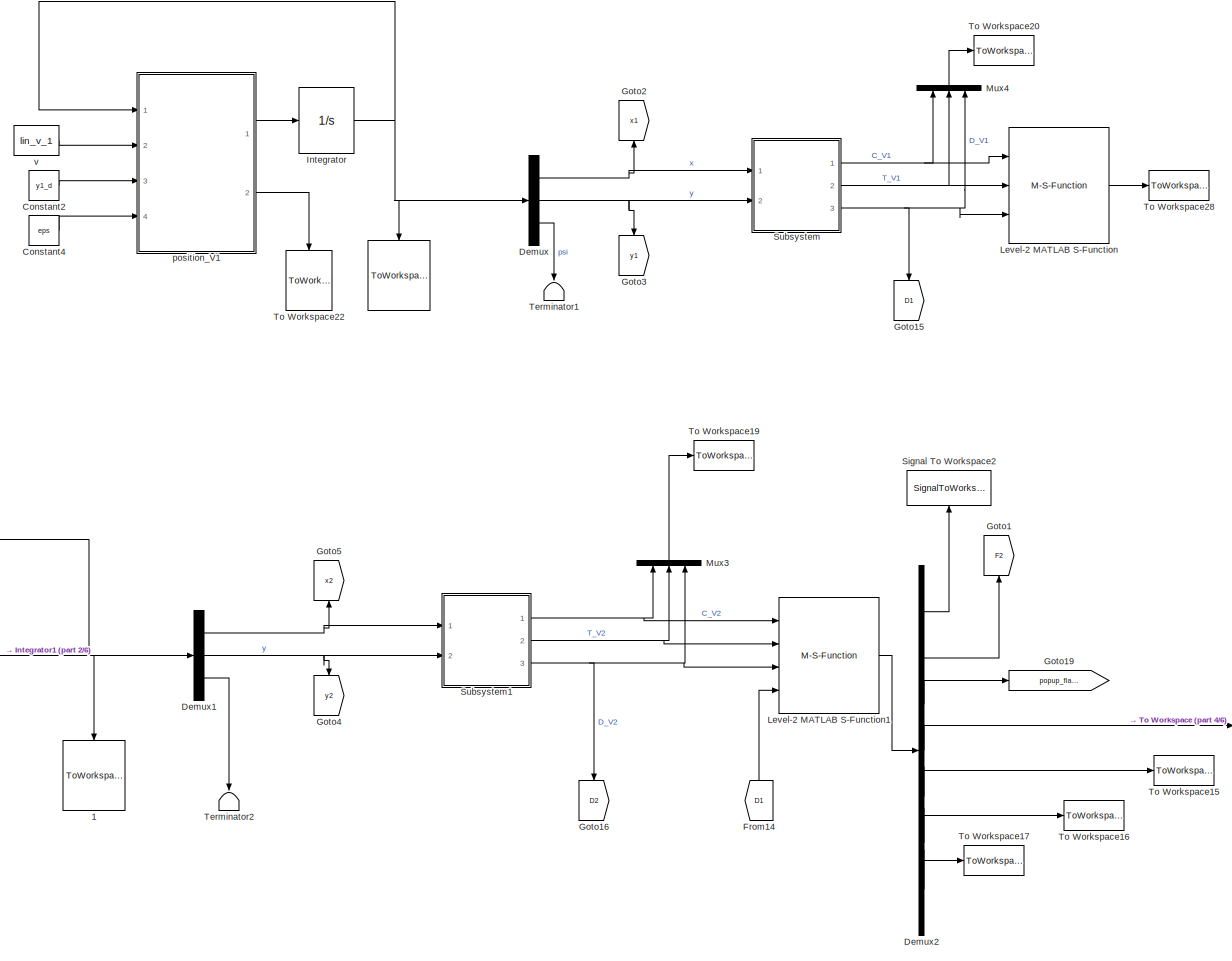
[diagram: root canvas - part 1/6, top right region]
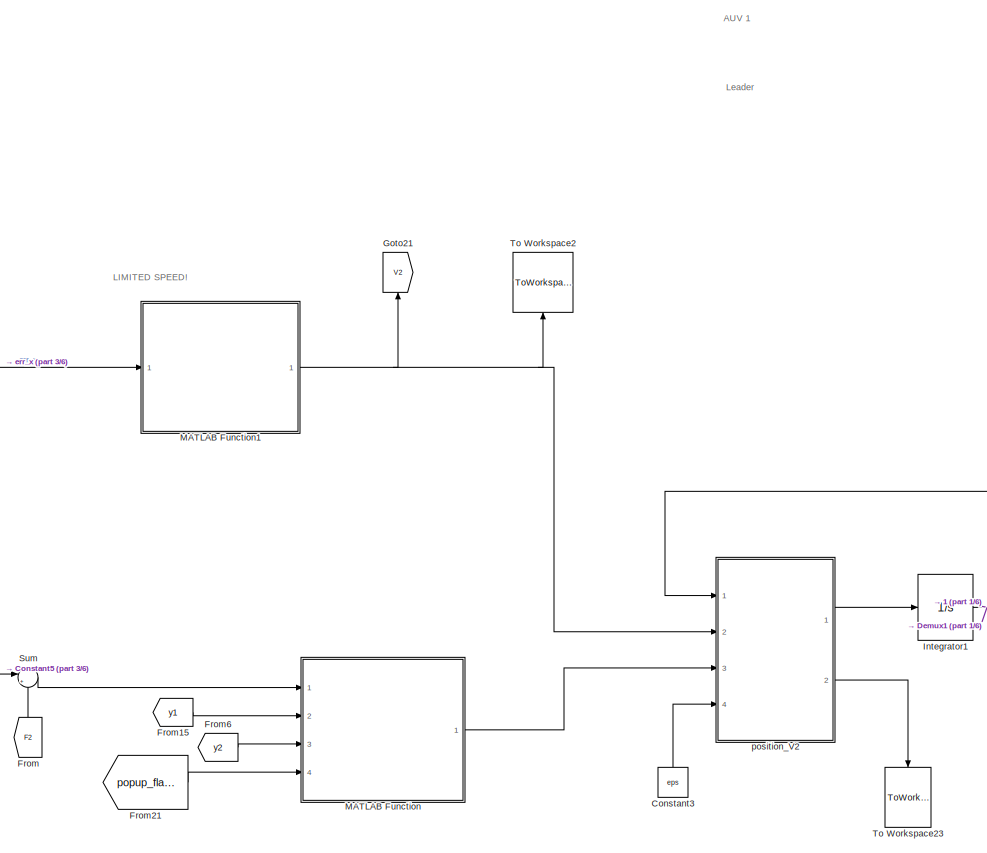
[diagram: root canvas - part 2/6, top center region]
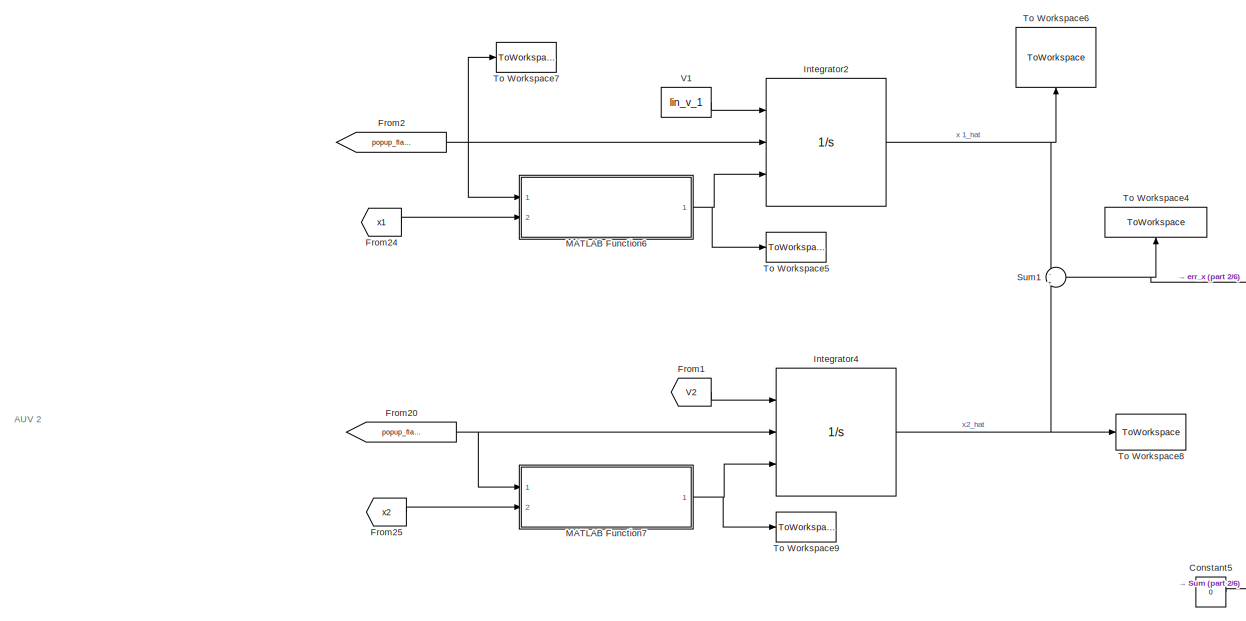
[diagram: root canvas - part 3/6, top left region]
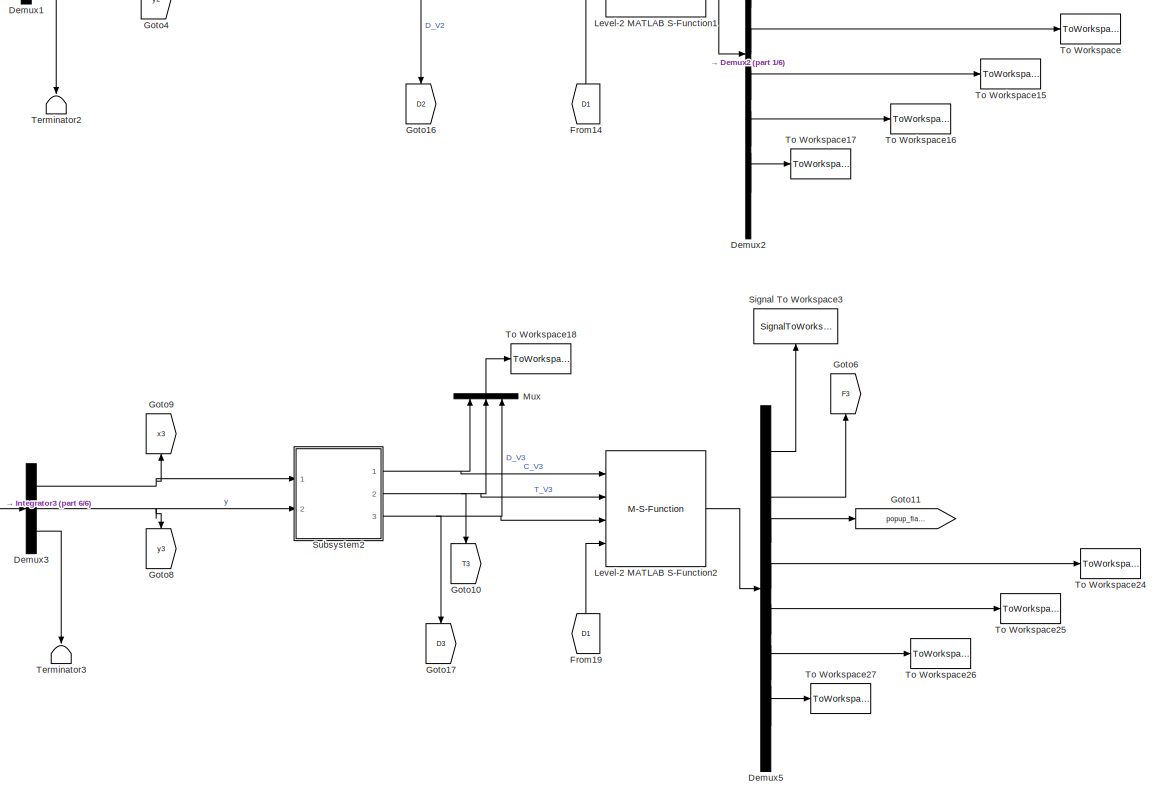
[diagram: root canvas - part 4/6, bottom right region]
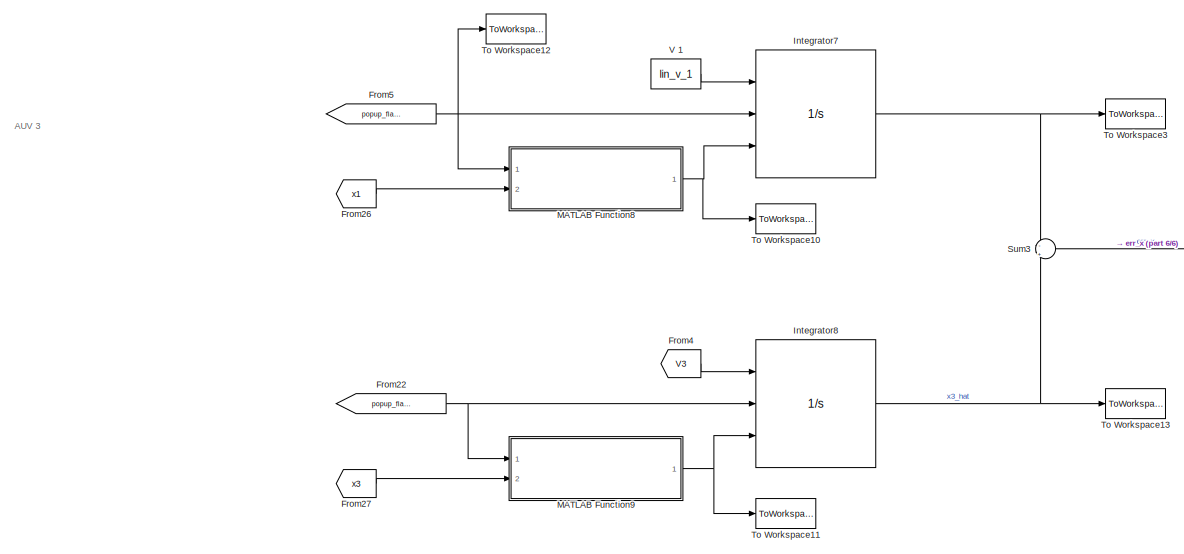
[diagram: root canvas - part 5/6, bottom left region]
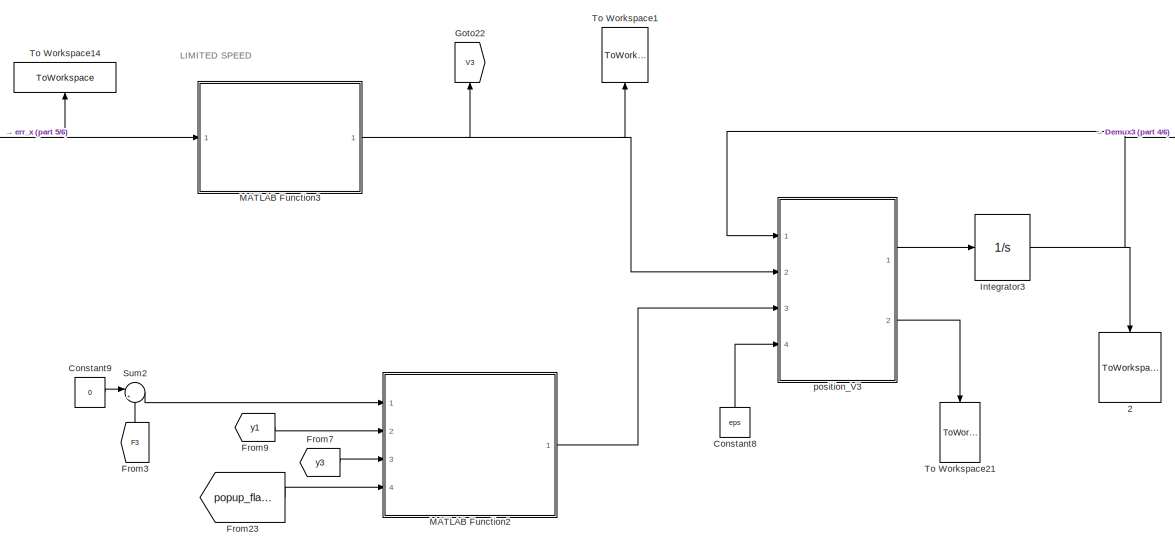
[diagram: root canvas - part 6/6, bottom center region]
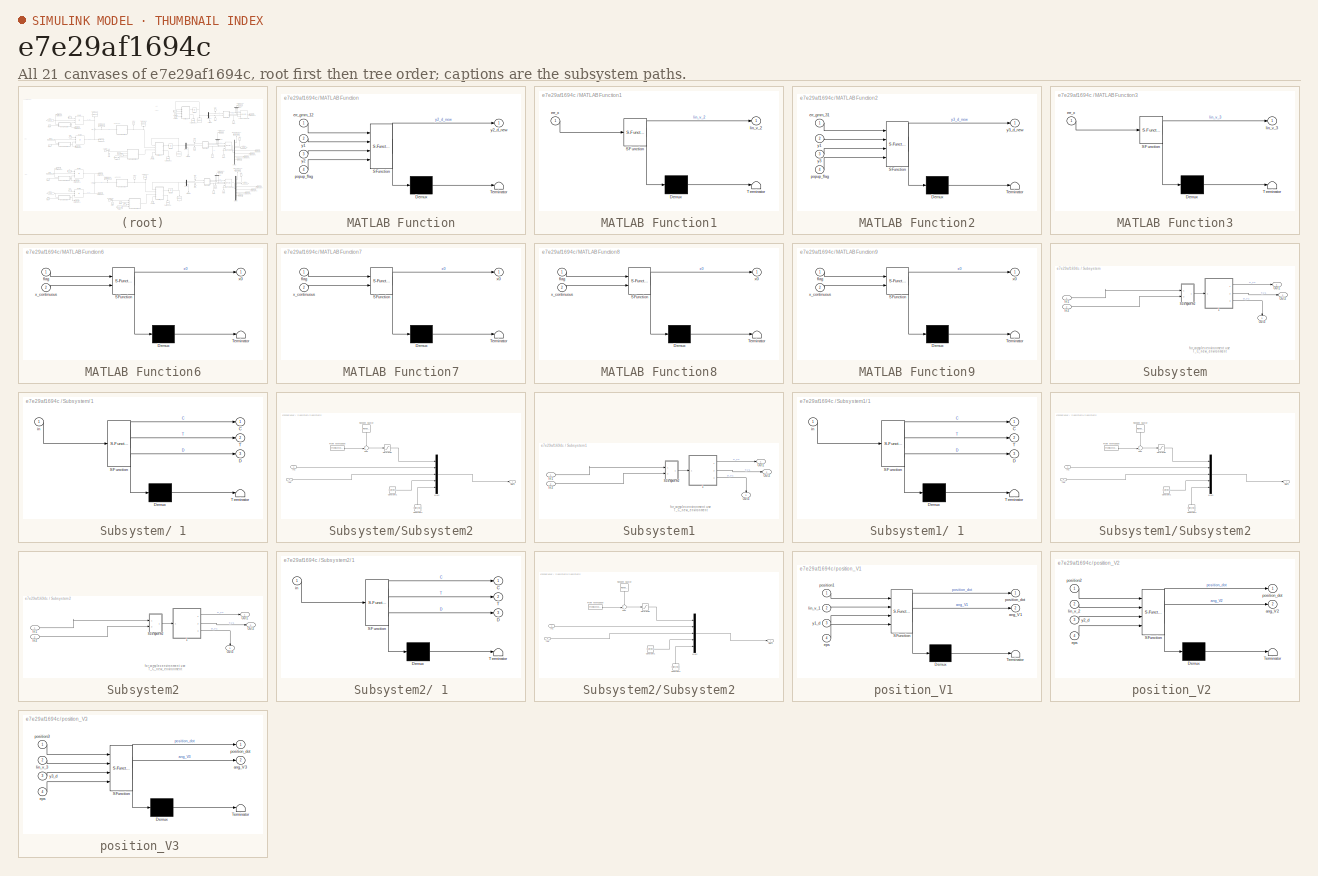
[diagram: thumbnail index - all 21 canvases of the model, root first then tree order]
MODEL slx_e7e29af1694c
KIND model
BLOCK [ToWorkspace]  
  FixptAsFi = on
  MaxDataPoints = inf
  Ports = [1]
  SampleTime = Sample_Time
  Save2DSignal = 3-D array (concatenate along third dimension)
  VariableName = position_V1
BLOCK [ToWorkspace]  1
  FixptAsFi = on
  MaxDataPoints = inf
  Ports = [1]
  SampleTime = Sample_Time
  Save2DSignal = 3-D array (concatenate along third dimension)
  VariableName = position_V2
BLOCK [ToWorkspace]  2
  FixptAsFi = on
  MaxDataPoints = inf
  Ports = [1]
  SampleTime = Sample_Time
  Save2DSignal = 3-D array (concatenate along third dimension)
  VariableName = position_V3
BLOCK [Constant] Constant2
  SampleTime = Sample_Time
  Value = y1_d
BLOCK [Constant] Constant3
  SampleTime = Sample_Time
  Value = eps
BLOCK [Constant] Constant4
  SampleTime = Sample_Time
  Value = eps
BLOCK [Constant] Constant5
  SampleTime = Sample_Time
  Value = 0
BLOCK [Constant] Constant8
  SampleTime = Sample_Time
  Value = eps
BLOCK [Constant] Constant9
  SampleTime = Sample_Time
  Value = 0
BLOCK [Demux] Demux
  DisplayOption = bar
  Outputs = 3
  Ports = [1, 3]
BLOCK [Demux] Demux1
  DisplayOption = bar
  Outputs = 3
  Ports = [1, 3]
BLOCK [Demux] Demux2
  DisplayOption = bar
  Outputs = 7
  Ports = [1, 7]
BLOCK [Demux] Demux3
  DisplayOption = bar
  Outputs = 3
  Ports = [1, 3]
BLOCK [Demux] Demux5
  DisplayOption = bar
  Outputs = 7
  Ports = [1, 7]
BLOCK [From] From
  GotoTag = F2
BLOCK [From] From1
  GotoTag = V2
BLOCK [From] From14
  GotoTag = D1
BLOCK [From] From15
  GotoTag = y1
  TagVisibility = global
BLOCK [From] From19
  GotoTag = D1
BLOCK [From] From2
  GotoTag = popup_flag2
BLOCK [From] From20
  GotoTag = popup_flag2
BLOCK [From] From21
  GotoTag = popup_flag2
BLOCK [From] From22
  GotoTag = popup_flag3
BLOCK [From] From23
  GotoTag = popup_flag3
BLOCK [From] From24
  GotoTag = x1
BLOCK [From] From25
  GotoTag = x2
BLOCK [From] From26
  GotoTag = x1
BLOCK [From] From27
  GotoTag = x3
BLOCK [From] From3
  GotoTag = F3
BLOCK [From] From4
  GotoTag = V3
BLOCK [From] From5
  GotoTag = popup_flag3
BLOCK [From] From6
  GotoTag = y2
BLOCK [From] From7
  GotoTag = y3
BLOCK [From] From9
  GotoTag = y1
  TagVisibility = global
BLOCK [Goto] Goto1
  GotoTag = F2
BLOCK [Goto] Goto10
  Commented = on
  GotoTag = T3
BLOCK [Goto] Goto11
  GotoTag = popup_flag3
BLOCK [Goto] Goto15
  GotoTag = D1
BLOCK [Goto] Goto16
  Commented = on
  GotoTag = D2
BLOCK [Goto] Goto17
  Commented = on
  GotoTag = D3
BLOCK [Goto] Goto19
  GotoTag = popup_flag2
BLOCK [Goto] Goto2
  GotoTag = x1
BLOCK [Goto] Goto21
  GotoTag = V2
BLOCK [Goto] Goto22
  GotoTag = V3
BLOCK [Goto] Goto3
  GotoTag = y1
  TagVisibility = global
BLOCK [Goto] Goto4
  GotoTag = y2
BLOCK [Goto] Goto5
  GotoTag = x2
BLOCK [Goto] Goto6
  GotoTag = F3
BLOCK [Goto] Goto8
  GotoTag = y3
BLOCK [Goto] Goto9
  GotoTag = x3
BLOCK [Integrator] Integrator
  InitialCondition = [0;y1_0;theta0]
  Ports = [1, 1]
BLOCK [Integrator] Integrator1
  InitialCondition = [0;y2_0;theta0]
  Ports = [1, 1]
BLOCK [Integrator] Integrator2
  ExternalReset = level hold
  InitialConditionSource = external
  Ports = [3, 1]
BLOCK [Integrator] Integrator3
  InitialCondition = [0;y3_0;theta0]
  Ports = [1, 1]
BLOCK [Integrator] Integrator4
  ExternalReset = level hold
  InitialConditionSource = external
  Ports = [3, 1]
BLOCK [Integrator] Integrator7
  ExternalReset = level hold
  InitialConditionSource = external
  Ports = [3, 1]
BLOCK [Integrator] Integrator8
  ExternalReset = level hold
  InitialConditionSource = external
  Ports = [3, 1]
BLOCK [M-S-Function] Level-2 MATLAB S-Function
  FunctionName = gmm_estimate_V1
  Ports = [3, 1]
BLOCK [M-S-Function] Level-2 MATLAB S-Function1
  FunctionName = gmm_estimate_V2
  Ports = [4, 1]
BLOCK [M-S-Function] Level-2 MATLAB S-Function2
  FunctionName = gmm_estimate_V3
  Ports = [4, 1]
BLOCK [SubSystem] MATLAB Function
  ErrorFcn = Stateflow.Translate.translate
  PermitHierarchicalResolution = ExplicitOnly
  Ports = [4, 1]
  RequestExecContextInheritance = off
  SFBlockType = MATLAB Function
  TreatAsAtomicUnit = on
BLOCK [Demux] MATLAB Function/ Demux 
  Outputs = 1
  Ports = [1, 1]
BLOCK [S-Function] MATLAB Function/ SFunction 
  EnableBusSupport = on
  FunctionName = sf_sfun
  PortCounts = [4 2]
  Ports = [4, 2]
  Tag = Stateflow S-Function fleet_model 6
BLOCK [Terminator] MATLAB Function/ Terminator 
BLOCK [Inport] MATLAB Function/err_gmm_12
  IconDisplay = Port number
BLOCK [Inport] MATLAB Function/popup_flag
  IconDisplay = Port number
  Port = 4
BLOCK [Inport] MATLAB Function/y1
  IconDisplay = Port number
  Port = 2
BLOCK [Inport] MATLAB Function/y2
  IconDisplay = Port number
  Port = 3
BLOCK [Outport] MATLAB Function/y2_d_new
  IconDisplay = Port number
BLOCK [SubSystem] MATLAB Function1
  ErrorFcn = Stateflow.Translate.translate
  PermitHierarchicalResolution = ExplicitOnly
  Ports = [1, 1]
  RequestExecContextInheritance = off
  SFBlockType = MATLAB Function
  TreatAsAtomicUnit = on
BLOCK [Demux] MATLAB Function1/ Demux 
  Outputs = 1
  Ports = [1, 1]
BLOCK [S-Function] MATLAB Function1/ SFunction 
  EnableBusSupport = on
  FunctionName = sf_sfun
  PortCounts = [1 2]
  Ports = [1, 2]
  Tag = Stateflow S-Function fleet_model 7
BLOCK [Terminator] MATLAB Function1/ Terminator 
BLOCK [Inport] MATLAB Function1/err_x
  IconDisplay = Port number
BLOCK [Outport] MATLAB Function1/lin_v_2
  IconDisplay = Port number
BLOCK [SubSystem] MATLAB Function2
  ErrorFcn = Stateflow.Translate.translate
  PermitHierarchicalResolution = ExplicitOnly
  Ports = [4, 1]
  RequestExecContextInheritance = off
  SFBlockType = MATLAB Function
  TreatAsAtomicUnit = on
BLOCK [Demux] MATLAB Function2/ Demux 
  Outputs = 1
  Ports = [1, 1]
BLOCK [S-Function] MATLAB Function2/ SFunction 
  EnableBusSupport = on
  FunctionName = sf_sfun
  PortCounts = [4 2]
  Ports = [4, 2]
  Tag = Stateflow S-Function fleet_model 8
BLOCK [Terminator] MATLAB Function2/ Terminator 
BLOCK [Inport] MATLAB Function2/err_gmm_31
  IconDisplay = Port number
BLOCK [Inport] MATLAB Function2/popup_flag
  IconDisplay = Port number
  Port = 4
BLOCK [Inport] MATLAB Function2/y1
  IconDisplay = Port number
  Port = 2
BLOCK [Inport] MATLAB Function2/y3
  IconDisplay = Port number
  Port = 3
BLOCK [Outport] MATLAB Function2/y3_d_new
  IconDisplay = Port number
BLOCK [SubSystem] MATLAB Function3
  ErrorFcn = Stateflow.Translate.translate
  PermitHierarchicalResolution = ExplicitOnly
  Ports = [1, 1]
  RequestExecContextInheritance = off
  SFBlockType = MATLAB Function
  TreatAsAtomicUnit = on
BLOCK [Demux] MATLAB Function3/ Demux 
  Outputs = 1
  Ports = [1, 1]
BLOCK [S-Function] MATLAB Function3/ SFunction 
  EnableBusSupport = on
  FunctionName = sf_sfun
  PortCounts = [1 2]
  Ports = [1, 2]
  Tag = Stateflow S-Function fleet_model 9
BLOCK [Terminator] MATLAB Function3/ Terminator 
BLOCK [Inport] MATLAB Function3/err_x
  IconDisplay = Port number
BLOCK [Outport] MATLAB Function3/lin_v_3
  IconDisplay = Port number
BLOCK [SubSystem] MATLAB Function6
  ErrorFcn = Stateflow.Translate.translate
  PermitHierarchicalResolution = ExplicitOnly
  Ports = [2, 1]
  RequestExecContextInheritance = off
  SFBlockType = MATLAB Function
  TreatAsAtomicUnit = on
BLOCK [Demux] MATLAB Function6/ Demux 
  Outputs = 1
  Ports = [1, 1]
BLOCK [S-Function] MATLAB Function6/ SFunction 
  EnableBusSupport = on
  FunctionName = sf_sfun
  PortCounts = [2 2]
  Ports = [2, 2]
  Tag = Stateflow S-Function fleet_model 15
BLOCK [Terminator] MATLAB Function6/ Terminator 
BLOCK [Inport] MATLAB Function6/flag
  IconDisplay = Port number
BLOCK [Outport] MATLAB Function6/x0
  IconDisplay = Port number
BLOCK [Inport] MATLAB Function6/x_continuous
  IconDisplay = Port number
  Port = 2
BLOCK [SubSystem] MATLAB Function7
  ErrorFcn = Stateflow.Translate.translate
  PermitHierarchicalResolution = ExplicitOnly
  Ports = [2, 1]
  RequestExecContextInheritance = off
  SFBlockType = MATLAB Function
  TreatAsAtomicUnit = on
BLOCK [Demux] MATLAB Function7/ Demux 
  Outputs = 1
  Ports = [1, 1]
BLOCK [S-Function] MATLAB Function7/ SFunction 
  EnableBusSupport = on
  FunctionName = sf_sfun
  PortCounts = [2 2]
  Ports = [2, 2]
  Tag = Stateflow S-Function fleet_model 16
BLOCK [Terminator] MATLAB Function7/ Terminator 
BLOCK [Inport] MATLAB Function7/flag
  IconDisplay = Port number
BLOCK [Outport] MATLAB Function7/x0
  IconDisplay = Port number
BLOCK [Inport] MATLAB Function7/x_continuous
  IconDisplay = Port number
  Port = 2
BLOCK [SubSystem] MATLAB Function8
  ErrorFcn = Stateflow.Translate.translate
  PermitHierarchicalResolution = ExplicitOnly
  Ports = [2, 1]
  RequestExecContextInheritance = off
  SFBlockType = MATLAB Function
  TreatAsAtomicUnit = on
BLOCK [Demux] MATLAB Function8/ Demux 
  Outputs = 1
  Ports = [1, 1]
BLOCK [S-Function] MATLAB Function8/ SFunction 
  EnableBusSupport = on
  FunctionName = sf_sfun
  PortCounts = [2 2]
  Ports = [2, 2]
  Tag = Stateflow S-Function fleet_model 17
BLOCK [Terminator] MATLAB Function8/ Terminator 
BLOCK [Inport] MATLAB Function8/flag
  IconDisplay = Port number
BLOCK [Outport] MATLAB Function8/x0
  IconDisplay = Port number
BLOCK [Inport] MATLAB Function8/x_continuous
  IconDisplay = Port number
  Port = 2
BLOCK [SubSystem] MATLAB Function9
  ErrorFcn = Stateflow.Translate.translate
  PermitHierarchicalResolution = ExplicitOnly
  Ports = [2, 1]
  RequestExecContextInheritance = off
  SFBlockType = MATLAB Function
  TreatAsAtomicUnit = on
BLOCK [Demux] MATLAB Function9/ Demux 
  Outputs = 1
  Ports = [1, 1]
BLOCK [S-Function] MATLAB Function9/ SFunction 
  EnableBusSupport = on
  FunctionName = sf_sfun
  PortCounts = [2 2]
  Ports = [2, 2]
  Tag = Stateflow S-Function fleet_model 18
BLOCK [Terminator] MATLAB Function9/ Terminator 
BLOCK [Inport] MATLAB Function9/flag
  IconDisplay = Port number
BLOCK [Outport] MATLAB Function9/x0
  IconDisplay = Port number
BLOCK [Inport] MATLAB Function9/x_continuous
  IconDisplay = Port number
  Port = 2
BLOCK [Mux] Mux
  DisplayOption = bar
  Inputs = 3
  Ports = [3, 1]
BLOCK [Mux] Mux3
  DisplayOption = bar
  Inputs = 3
  Ports = [3, 1]
BLOCK [Mux] Mux4
  DisplayOption = bar
  Inputs = 3
  Ports = [3, 1]
BLOCK [SignalToWorkspace] Signal To Workspace2
  CopyFcn = dspblkcopystw(gcbh);
  FixptAsFi = on
  MaxDataPoints = inf
  Ports = [1]
  Save2DSignal = Inherit from input (this choice will be removed - see release notes)
  VariableName = err_gmm_12
BLOCK [SignalToWorkspace] Signal To Workspace3
  CopyFcn = dspblkcopystw(gcbh);
  FixptAsFi = on
  MaxDataPoints = inf
  Ports = [1]
  Save2DSignal = Inherit from input (this choice will be removed - see release notes)
  VariableName = err_gmm_31
BLOCK [SubSystem] Subsystem
  Ports = [2, 3]
  RequestExecContextInheritance = off
BLOCK [SubSystem] Subsystem/ 1
  ErrorFcn = Stateflow.Translate.translate
  PermitHierarchicalResolution = ExplicitOnly
  Ports = [1, 3]
  RequestExecContextInheritance = off
  SFBlockType = MATLAB Function
  TreatAsAtomicUnit = on
BLOCK [Demux] Subsystem/ 1/ Demux 
  Outputs = 1
  Ports = [1, 1]
BLOCK [S-Function] Subsystem/ 1/ SFunction 
  EnableBusSupport = on
  FunctionName = sf_sfun
  PortCounts = [1 4]
  Ports = [1, 4]
  Tag = Stateflow S-Function fleet_model 1
BLOCK [Terminator] Subsystem/ 1/ Terminator 
BLOCK [Outport] Subsystem/ 1/C
  IconDisplay = Port number
BLOCK [Outport] Subsystem/ 1/D
  IconDisplay = Port number
  Port = 3
BLOCK [Outport] Subsystem/ 1/T
  IconDisplay = Port number
  Port = 2
BLOCK [Inport] Subsystem/ 1/in
  IconDisplay = Port number
BLOCK [Inport] Subsystem/In1
  IconDisplay = Port number
BLOCK [Inport] Subsystem/In2
  IconDisplay = Port number
  Port = 2
BLOCK [Outport] Subsystem/Out1
  IconDisplay = Port number
BLOCK [Outport] Subsystem/Out2
  IconDisplay = Port number
  Port = 2
BLOCK [Outport] Subsystem/Out3
  IconDisplay = Port number
  Port = 3
BLOCK [SubSystem] Subsystem/Subsystem2
  Ports = [2, 1]
  RequestExecContextInheritance = off
BLOCK [Constant] Subsystem/Subsystem2/Constant1
  SampleTime = Sample_Time
  Value = y_left_most
BLOCK [Constant] Subsystem/Subsystem2/Constant2
  SampleTime = Sample_Time
  Value = y_right_most
BLOCK [FromWorkspace] Subsystem/Subsystem2/From Workspace
  Interpolate = off
  OutputAfterFinalValue = Cyclic repetition
  SampleTime = Sample_Time
  VariableName = z_one_dive
  ZeroCross = on
BLOCK [Inport] Subsystem/Subsystem2/In1
  IconDisplay = Port number
BLOCK [Inport] Subsystem/Subsystem2/In2
  IconDisplay = Port number
  Port = 2
BLOCK [Mux] Subsystem/Subsystem2/Mux2
  DisplayOption = bar
  Inputs = 5
  Ports = [5, 1]
BLOCK [Outport] Subsystem/Subsystem2/Out1
  IconDisplay = Port number
BLOCK [Reference] Subsystem/Subsystem2/Random Source  REF=dspsrcs4/Random
Source
  CltLength = 12
  DataType = Single
  Diagnostics = AllowInheritedTsInSrc
  IsInherit = on
  MaxVal = 1
  MeanVal = 0
  MinVal = 0
  NormMethod = Ziggurat
  OutComplex = Real
  Ports = [0, 1]
  RepMode = Repeatable
  SampFrame = 1
  SampMode = Continuous
  SampTime = 1
  SourceBlock = dspsrcs4/Random\nSource
  SourceType = Random Source
  SrcType = Gaussian
  UserDataPersistent = on
  VarVal = .001
  rawSeed = 1
BLOCK [Saturate] Subsystem/Subsystem2/Saturation
  InputPortMap = u0
  LowerLimit = 0
  Ports = [1, 1]
  UpperLimit = 1
  ZeroCross = off
BLOCK [Sum] Subsystem/Subsystem2/Sum
  IconShape = round
  InputSameDT = off
  Inputs = ++|
  OutDataTypeStr = Inherit: Inherit via internal rule
  Ports = [2, 1]
  SaturateOnIntegerOverflow = off
BLOCK [SubSystem] Subsystem1
  Ports = [2, 3]
  RequestExecContextInheritance = off
BLOCK [SubSystem] Subsystem1/ 1
  ErrorFcn = Stateflow.Translate.translate
  PermitHierarchicalResolution = ExplicitOnly
  Ports = [1, 3]
  RequestExecContextInheritance = off
  SFBlockType = MATLAB Function
  TreatAsAtomicUnit = on
BLOCK [Demux] Subsystem1/ 1/ Demux 
  Outputs = 1
  Ports = [1, 1]
BLOCK [S-Function] Subsystem1/ 1/ SFunction 
  EnableBusSupport = on
  FunctionName = sf_sfun
  PortCounts = [1 4]
  Ports = [1, 4]
  Tag = Stateflow S-Function fleet_model 3
BLOCK [Terminator] Subsystem1/ 1/ Terminator 
BLOCK [Outport] Subsystem1/ 1/C
  IconDisplay = Port number
BLOCK [Outport] Subsystem1/ 1/D
  IconDisplay = Port number
  Port = 3
BLOCK [Outport] Subsystem1/ 1/T
  IconDisplay = Port number
  Port = 2
BLOCK [Inport] Subsystem1/ 1/in
  IconDisplay = Port number
BLOCK [Inport] Subsystem1/In1
  IconDisplay = Port number
BLOCK [Inport] Subsystem1/In2
  IconDisplay = Port number
  Port = 2
BLOCK [Outport] Subsystem1/Out1
  IconDisplay = Port number
BLOCK [Outport] Subsystem1/Out2
  IconDisplay = Port number
  Port = 2
BLOCK [Outport] Subsystem1/Out3
  IconDisplay = Port number
  Port = 3
BLOCK [SubSystem] Subsystem1/Subsystem2
  Ports = [2, 1]
  RequestExecContextInheritance = off
BLOCK [Constant] Subsystem1/Subsystem2/Constant1
  SampleTime = Sample_Time
  Value = y_left_most
BLOCK [Constant] Subsystem1/Subsystem2/Constant2
  SampleTime = Sample_Time
  Value = y_right_most
BLOCK [FromWorkspace] Subsystem1/Subsystem2/From Workspace
  Interpolate = off
  OutputAfterFinalValue = Cyclic repetition
  SampleTime = Sample_Time
  VariableName = z_one_dive
  ZeroCross = on
BLOCK [Inport] Subsystem1/Subsystem2/In1
  IconDisplay = Port number
BLOCK [Inport] Subsystem1/Subsystem2/In2
  IconDisplay = Port number
  Port = 2
BLOCK [Mux] Subsystem1/Subsystem2/Mux2
  DisplayOption = bar
  Inputs = 5
  Ports = [5, 1]
BLOCK [Outport] Subsystem1/Subsystem2/Out1
  IconDisplay = Port number
BLOCK [Reference] Subsystem1/Subsystem2/Random Source  REF=dspsrcs4/Random
Source
  CltLength = 12
  DataType = Single
  Diagnostics = AllowInheritedTsInSrc
  IsInherit = on
  MaxVal = 1
  MeanVal = 0
  MinVal = 0
  NormMethod = Ziggurat
  OutComplex = Real
  Ports = [0, 1]
  RepMode = Repeatable
  SampFrame = 1
  SampMode = Continuous
  SampTime = 1
  SourceBlock = dspsrcs4/Random\nSource
  SourceType = Random Source
  SrcType = Gaussian
  UserDataPersistent = on
  VarVal = .001
  rawSeed = 1
BLOCK [Saturate] Subsystem1/Subsystem2/Saturation
  InputPortMap = u0
  LowerLimit = 0
  Ports = [1, 1]
  UpperLimit = 1
  ZeroCross = off
BLOCK [Sum] Subsystem1/Subsystem2/Sum
  IconShape = round
  InputSameDT = off
  Inputs = ++|
  OutDataTypeStr = Inherit: Inherit via internal rule
  Ports = [2, 1]
  SaturateOnIntegerOverflow = off
BLOCK [SubSystem] Subsystem2
  Ports = [2, 3]
  RequestExecContextInheritance = off
BLOCK [SubSystem] Subsystem2/ 1
  ErrorFcn = Stateflow.Translate.translate
  PermitHierarchicalResolution = ExplicitOnly
  Ports = [1, 3]
  RequestExecContextInheritance = off
  SFBlockType = MATLAB Function
  TreatAsAtomicUnit = on
BLOCK [Demux] Subsystem2/ 1/ Demux 
  Outputs = 1
  Ports = [1, 1]
BLOCK [S-Function] Subsystem2/ 1/ SFunction 
  EnableBusSupport = on
  FunctionName = sf_sfun
  PortCounts = [1 4]
  Ports = [1, 4]
  Tag = Stateflow S-Function fleet_model 5
BLOCK [Terminator] Subsystem2/ 1/ Terminator 
BLOCK [Outport] Subsystem2/ 1/C
  IconDisplay = Port number
BLOCK [Outport] Subsystem2/ 1/D
  IconDisplay = Port number
  Port = 3
BLOCK [Outport] Subsystem2/ 1/T
  IconDisplay = Port number
  Port = 2
BLOCK [Inport] Subsystem2/ 1/in
  IconDisplay = Port number
BLOCK [Inport] Subsystem2/In1
  IconDisplay = Port number
BLOCK [Inport] Subsystem2/In2
  IconDisplay = Port number
  Port = 2
BLOCK [Outport] Subsystem2/Out1
  IconDisplay = Port number
BLOCK [Outport] Subsystem2/Out2
  IconDisplay = Port number
  Port = 2
BLOCK [Outport] Subsystem2/Out3
  IconDisplay = Port number
  Port = 3
BLOCK [SubSystem] Subsystem2/Subsystem2
  Ports = [2, 1]
  RequestExecContextInheritance = off
BLOCK [Constant] Subsystem2/Subsystem2/Constant1
  SampleTime = Sample_Time
  Value = y_left_most
BLOCK [Constant] Subsystem2/Subsystem2/Constant2
  SampleTime = Sample_Time
  Value = y_right_most
BLOCK [FromWorkspace] Subsystem2/Subsystem2/From Workspace
  Interpolate = off
  OutputAfterFinalValue = Cyclic repetition
  SampleTime = Sample_Time
  VariableName = z_one_dive
  ZeroCross = on
BLOCK [Inport] Subsystem2/Subsystem2/In1
  IconDisplay = Port number
BLOCK [Inport] Subsystem2/Subsystem2/In2
  IconDisplay = Port number
  Port = 2
BLOCK [Mux] Subsystem2/Subsystem2/Mux2
  DisplayOption = bar
  Inputs = 5
  Ports = [5, 1]
BLOCK [Outport] Subsystem2/Subsystem2/Out1
  IconDisplay = Port number
BLOCK [Reference] Subsystem2/Subsystem2/Random Source  REF=dspsrcs4/Random
Source
  CltLength = 12
  DataType = Single
  Diagnostics = AllowInheritedTsInSrc
  IsInherit = on
  MaxVal = 1
  MeanVal = 0
  MinVal = 0
  NormMethod = Ziggurat
  OutComplex = Real
  Ports = [0, 1]
  RepMode = Repeatable
  SampFrame = 1
  SampMode = Continuous
  SampTime = 1
  SourceBlock = dspsrcs4/Random\nSource
  SourceType = Random Source
  SrcType = Gaussian
  UserDataPersistent = on
  VarVal = .001
  rawSeed = 1
BLOCK [Saturate] Subsystem2/Subsystem2/Saturation
  InputPortMap = u0
  LowerLimit = 0
  Ports = [1, 1]
  UpperLimit = 1
  ZeroCross = off
BLOCK [Sum] Subsystem2/Subsystem2/Sum
  IconShape = round
  InputSameDT = off
  Inputs = ++|
  OutDataTypeStr = Inherit: Inherit via internal rule
  Ports = [2, 1]
  SaturateOnIntegerOverflow = off
BLOCK [Sum] Sum
  IconShape = round
  InputSameDT = off
  Inputs = |++
  OutDataTypeStr = Inherit: Inherit via internal rule
  Ports = [2, 1]
  SaturateOnIntegerOverflow = off
BLOCK [Sum] Sum1
  IconShape = round
  InputSameDT = off
  Inputs = -|+
  OutDataTypeStr = Inherit: Inherit via internal rule
  Ports = [2, 1]
  SaturateOnIntegerOverflow = off
BLOCK [Sum] Sum2
  IconShape = round
  InputSameDT = off
  Inputs = |++
  OutDataTypeStr = Inherit: Inherit via internal rule
  Ports = [2, 1]
  SaturateOnIntegerOverflow = off
BLOCK [Sum] Sum3
  IconShape = round
  InputSameDT = off
  Inputs = -|+
  OutDataTypeStr = Inherit: Inherit via internal rule
  Ports = [2, 1]
  SaturateOnIntegerOverflow = off
BLOCK [Terminator] Terminator1
BLOCK [Terminator] Terminator2
BLOCK [Terminator] Terminator3
BLOCK [ToWorkspace] To Workspace
  FixptAsFi = on
  MaxDataPoints = inf
  Ports = [1]
  SampleTime = Sample_Time
  Save2DSignal = 3-D array (concatenate along third dimension)
  VariableName = K_V2
BLOCK [ToWorkspace] To Workspace1
  FixptAsFi = on
  MaxDataPoints = inf
  Ports = [1]
  SampleTime = Sample_Time
  Save2DSignal = 3-D array (concatenate along third dimension)
  VariableName = lin_V3
BLOCK [ToWorkspace] To Workspace10
  Commented = on
  FixptAsFi = on
  MaxDataPoints = inf
  Ports = [1]
  SampleTime = -1
  Save2DSignal = 3-D array (concatenate along third dimension)
  VariableName = x1_reset_veh3
BLOCK [ToWorkspace] To Workspace11
  Commented = on
  FixptAsFi = on
  MaxDataPoints = inf
  Ports = [1]
  SampleTime = -1
  Save2DSignal = 3-D array (concatenate along third dimension)
  VariableName = x3_reset_veh3
BLOCK [ToWorkspace] To Workspace12
  FixptAsFi = on
  MaxDataPoints = inf
  Ports = [1]
  SampleTime = Sample_Time
  Save2DSignal = 3-D array (concatenate along third dimension)
  VariableName = FLAG3
BLOCK [ToWorkspace] To Workspace13
  Commented = on
  FixptAsFi = on
  MaxDataPoints = inf
  Ports = [1]
  SampleTime = -1
  Save2DSignal = 3-D array (concatenate along third dimension)
  VariableName = x3_hat_veh3
BLOCK [ToWorkspace] To Workspace14
  Commented = on
  FixptAsFi = on
  MaxDataPoints = inf
  Ports = [1]
  SampleTime = -1
  Save2DSignal = 3-D array (concatenate along third dimension)
  VariableName = err_x_veh3
BLOCK [ToWorkspace] To Workspace15
  FixptAsFi = on
  MaxDataPoints = inf
  Ports = [1]
  SampleTime = Sample_Time
  Save2DSignal = 3-D array (concatenate along third dimension)
  VariableName = var_dist_12
BLOCK [ToWorkspace] To Workspace16
  FixptAsFi = on
  MaxDataPoints = inf
  Ports = [1]
  SampleTime = Sample_Time
  Save2DSignal = 3-D array (concatenate along third dimension)
  VariableName = bh_dist_21
BLOCK [ToWorkspace] To Workspace17
  FixptAsFi = on
  MaxDataPoints = inf
  Ports = [1]
  SampleTime = Sample_Time
  Save2DSignal = 3-D array (concatenate along third dimension)
  VariableName = bh_dist_12
BLOCK [ToWorkspace] To Workspace18
  FixptAsFi = on
  MaxDataPoints = inf
  Ports = [1]
  SampleTime = Sample_Time
  Save2DSignal = 3-D array (concatenate along third dimension)
  VariableName = CTD3
BLOCK [ToWorkspace] To Workspace19
  FixptAsFi = on
  MaxDataPoints = inf
  Ports = [1]
  SampleTime = Sample_Time
  Save2DSignal = 3-D array (concatenate along third dimension)
  VariableName = CTD2
BLOCK [ToWorkspace] To Workspace2
  FixptAsFi = on
  MaxDataPoints = inf
  Ports = [1]
  SampleTime = Sample_Time
  Save2DSignal = 3-D array (concatenate along third dimension)
  VariableName = lin_V2
BLOCK [ToWorkspace] To Workspace20
  FixptAsFi = on
  MaxDataPoints = inf
  Ports = [1]
  SampleTime = Sample_Time
  Save2DSignal = 3-D array (concatenate along third dimension)
  VariableName = CTD1
BLOCK [ToWorkspace] To Workspace21
  FixptAsFi = on
  MaxDataPoints = inf
  Ports = [1]
  SampleTime = Sample_Time
  Save2DSignal = 3-D array (concatenate along third dimension)
  VariableName = ang_V3
BLOCK [ToWorkspace] To Workspace22
  FixptAsFi = on
  MaxDataPoints = inf
  Ports = [1]
  SampleTime = Sample_Time
  Save2DSignal = 3-D array (concatenate along third dimension)
  VariableName = ang_V1
BLOCK [ToWorkspace] To Workspace23
  FixptAsFi = on
  MaxDataPoints = inf
  Ports = [1]
  SampleTime = Sample_Time
  Save2DSignal = 3-D array (concatenate along third dimension)
  VariableName = ang_V2
BLOCK [ToWorkspace] To Workspace24
  FixptAsFi = on
  MaxDataPoints = inf
  Ports = [1]
  SampleTime = Sample_Time
  Save2DSignal = 3-D array (concatenate along third dimension)
  VariableName = K_V3
BLOCK [ToWorkspace] To Workspace25
  FixptAsFi = on
  MaxDataPoints = inf
  Ports = [1]
  SampleTime = Sample_Time
  Save2DSignal = 3-D array (concatenate along third dimension)
  VariableName = var_dist_13
BLOCK [ToWorkspace] To Workspace26
  FixptAsFi = on
  MaxDataPoints = inf
  Ports = [1]
  SampleTime = Sample_Time
  Save2DSignal = 3-D array (concatenate along third dimension)
  VariableName = bh_dist_31
BLOCK [ToWorkspace] To Workspace27
  FixptAsFi = on
  MaxDataPoints = inf
  Ports = [1]
  SampleTime = Sample_Time
  Save2DSignal = 3-D array (concatenate along third dimension)
  VariableName = bh_dist_13
BLOCK [ToWorkspace] To Workspace28
  FixptAsFi = on
  MaxDataPoints = inf
  Ports = [1]
  SampleTime = Sample_Time
  Save2DSignal = 3-D array (concatenate along third dimension)
  VariableName = K_V1
BLOCK [ToWorkspace] To Workspace3
  Commented = on
  FixptAsFi = on
  MaxDataPoints = inf
  Ports = [1]
  SampleTime = -1
  Save2DSignal = 3-D array (concatenate along third dimension)
  VariableName = x1_hat_veh3
BLOCK [ToWorkspace] To Workspace4
  Commented = on
  FixptAsFi = on
  MaxDataPoints = inf
  Ports = [1]
  SampleTime = -1
  Save2DSignal = 3-D array (concatenate along third dimension)
  VariableName = err_x_veh2
BLOCK [ToWorkspace] To Workspace5
  Commented = on
  FixptAsFi = on
  MaxDataPoints = inf
  Ports = [1]
  SampleTime = -1
  Save2DSignal = 3-D array (concatenate along third dimension)
  VariableName = x1_reset_veh2
BLOCK [ToWorkspace] To Workspace6
  Commented = on
  FixptAsFi = on
  MaxDataPoints = inf
  Ports = [1]
  SampleTime = -1
  Save2DSignal = 3-D array (concatenate along third dimension)
  VariableName = x1_hat_veh2
BLOCK [ToWorkspace] To Workspace7
  FixptAsFi = on
  MaxDataPoints = inf
  Ports = [1]
  SampleTime = Sample_Time
  Save2DSignal = 3-D array (concatenate along third dimension)
  VariableName = FLAG2
BLOCK [ToWorkspace] To Workspace8
  Commented = on
  FixptAsFi = on
  MaxDataPoints = inf
  Ports = [1]
  SampleTime = -1
  Save2DSignal = 3-D array (concatenate along third dimension)
  VariableName = x2_hat_veh2
BLOCK [ToWorkspace] To Workspace9
  Commented = on
  FixptAsFi = on
  MaxDataPoints = inf
  Ports = [1]
  SampleTime = -1
  Save2DSignal = 3-D array (concatenate along third dimension)
  VariableName = x2_reset_veh2
BLOCK [Constant] V 1
  SampleTime = Sample_Time
  Value = lin_v_1
BLOCK [Constant] V1
  SampleTime = Sample_Time
  Value = lin_v_1
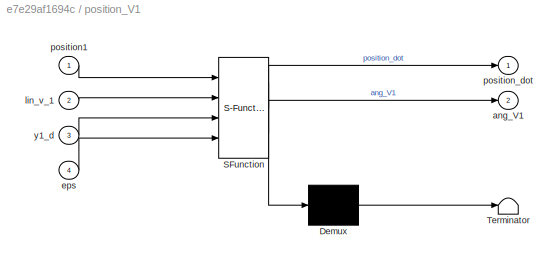
BLOCK [SubSystem] position_V1 
  ErrorFcn = Stateflow.Translate.translate
  PermitHierarchicalResolution = ExplicitOnly
  Ports = [4, 2]
  RequestExecContextInheritance = off
  SFBlockType = MATLAB Function
  TreatAsAtomicUnit = on
BLOCK [Demux] position_V1 / Demux 
  Outputs = 1
  Ports = [1, 1]
BLOCK [S-Function] position_V1 / SFunction 
  EnableBusSupport = on
  FunctionName = sf_sfun
  PortCounts = [4 3]
  Ports = [4, 3]
  Tag = Stateflow S-Function fleet_model 2
BLOCK [Terminator] position_V1 / Terminator 
BLOCK [Outport] position_V1 /ang_V1
  IconDisplay = Port number
  Port = 2
BLOCK [Inport] position_V1 /eps
  IconDisplay = Port number
  Port = 4
BLOCK [Inport] position_V1 /lin_v_1
  IconDisplay = Port number
  Port = 2
BLOCK [Inport] position_V1 /position1
  IconDisplay = Port number
BLOCK [Outport] position_V1 /position_dot
  IconDisplay = Port number
BLOCK [Inport] position_V1 /y1_d
  IconDisplay = Port number
  Port = 3
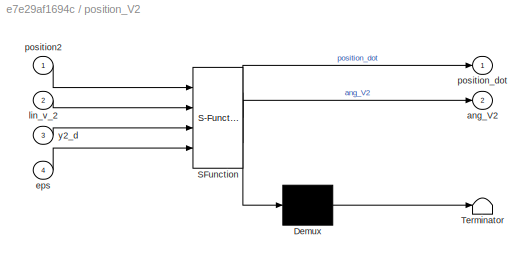
BLOCK [SubSystem] position_V2 
  ErrorFcn = Stateflow.Translate.translate
  PermitHierarchicalResolution = ExplicitOnly
  Ports = [4, 2]
  RequestExecContextInheritance = off
  SFBlockType = MATLAB Function
  TreatAsAtomicUnit = on
BLOCK [Demux] position_V2 / Demux 
  Outputs = 1
  Ports = [1, 1]
BLOCK [S-Function] position_V2 / SFunction 
  EnableBusSupport = on
  FunctionName = sf_sfun
  PortCounts = [4 3]
  Ports = [4, 3]
  Tag = Stateflow S-Function fleet_model 4
BLOCK [Terminator] position_V2 / Terminator 
BLOCK [Outport] position_V2 /ang_V2
  IconDisplay = Port number
  Port = 2
BLOCK [Inport] position_V2 /eps
  IconDisplay = Port number
  Port = 4
BLOCK [Inport] position_V2 /lin_v_2
  IconDisplay = Port number
  Port = 2
BLOCK [Inport] position_V2 /position2
  IconDisplay = Port number
BLOCK [Outport] position_V2 /position_dot
  IconDisplay = Port number
BLOCK [Inport] position_V2 /y2_d
  IconDisplay = Port number
  Port = 3
BLOCK [SubSystem] position_V3 
  ErrorFcn = Stateflow.Translate.translate
  PermitHierarchicalResolution = ExplicitOnly
  Ports = [4, 2]
  RequestExecContextInheritance = off
  SFBlockType = MATLAB Function
  TreatAsAtomicUnit = on
BLOCK [Demux] position_V3 / Demux 
  Outputs = 1
  Ports = [1, 1]
BLOCK [S-Function] position_V3 / SFunction 
  EnableBusSupport = on
  FunctionName = sf_sfun
  PortCounts = [4 3]
  Ports = [4, 3]
  Tag = Stateflow S-Function fleet_model 10
BLOCK [Terminator] position_V3 / Terminator 
BLOCK [Outport] position_V3 /ang_V3
  IconDisplay = Port number
  Port = 2
BLOCK [Inport] position_V3 /eps
  IconDisplay = Port number
  Port = 4
BLOCK [Inport] position_V3 /lin_v_3
  IconDisplay = Port number
  Port = 2
BLOCK [Inport] position_V3 /position3
  IconDisplay = Port number
BLOCK [Outport] position_V3 /position_dot
  IconDisplay = Port number
BLOCK [Inport] position_V3 /y3_d
  IconDisplay = Port number
  Port = 3
BLOCK [Constant] v
  SampleTime = Sample_Time
  Value = lin_v_1
ANNOTATION (root): LIMITED SPEED!
ANNOTATION (root): LIMITED SPEED
ANNOTATION (root): Leader
ANNOTATION (root): AUV 2
ANNOTATION (root): AUV 3
ANNOTATION (root): AUV 1
ANNOTATION Subsystem: for complex environment use T_C_new_environment
ANNOTATION Subsystem1: for complex environment use T_C_new_environment
ANNOTATION Subsystem2: for complex environment use T_C_new_environment
LINE Constant2:1 -> position_V1 :3
LINE Constant3:1 -> position_V2 :4
LINE Constant4:1 -> position_V1 :4
LINE Constant5:1 -> Sum:1
LINE Constant8:1 -> position_V3 :4
LINE Constant9:1 -> Sum2:1
NET Demux1:1 -> Goto5:1, Subsystem1:1
NET Demux1:2 -> Goto4:1, Subsystem1:2
LINE Demux1:3 -> Terminator2:1
LINE Demux2:1 -> Signal To Workspace2:1
LINE Demux2:2 -> Goto1:1
LINE Demux2:3 -> Goto19:1
LINE Demux2:4 -> To Workspace:1
LINE Demux2:5 -> To Workspace15:1
LINE Demux2:6 -> To Workspace16:1
LINE Demux2:7 -> To Workspace17:1
NET Demux3:1 -> Goto9:1, Subsystem2:1
NET Demux3:2 -> Goto8:1, Subsystem2:2
LINE Demux3:3 -> Terminator3:1
LINE Demux5:1 -> Signal To Workspace3:1
LINE Demux5:2 -> Goto6:1
LINE Demux5:3 -> Goto11:1
LINE Demux5:4 -> To Workspace24:1
LINE Demux5:5 -> To Workspace25:1
LINE Demux5:6 -> To Workspace26:1
LINE Demux5:7 -> To Workspace27:1
NET Demux:1 -> Goto2:1, Subsystem:1
NET Demux:2 -> Goto3:1, Subsystem:2
LINE Demux:3 -> Terminator1:1
LINE From14:1 -> Level-2 MATLAB S-Function1:4
LINE From15:1 -> MATLAB Function:2
LINE From19:1 -> Level-2 MATLAB S-Function2:4
LINE From1:1 -> Integrator4:1
NET From20:1 -> Integrator4:2, MATLAB Function7:1
LINE From21:1 -> MATLAB Function:4
NET From22:1 -> Integrator8:2, MATLAB Function9:1
LINE From23:1 -> MATLAB Function2:4
LINE From24:1 -> MATLAB Function6:2
LINE From25:1 -> MATLAB Function7:2
LINE From26:1 -> MATLAB Function8:2
LINE From27:1 -> MATLAB Function9:2
NET From2:1 -> Integrator2:2, MATLAB Function6:1, To Workspace7:1
LINE From3:1 -> Sum2:2
LINE From4:1 -> Integrator8:1
NET From5:1 -> Integrator7:2, MATLAB Function8:1, To Workspace12:1
LINE From6:1 -> MATLAB Function:3
LINE From7:1 -> MATLAB Function2:3
LINE From9:1 -> MATLAB Function2:2
LINE From:1 -> Sum:2
NET Integrator1:1 ->  1:1, Demux1:1, position_V2 :1
NET Integrator2:1 -> Sum1:1, To Workspace6:1
NET Integrator3:1 ->  2:1, Demux3:1, position_V3 :1
NET Integrator4:1 -> Sum1:2, To Workspace8:1
NET Integrator7:1 -> Sum3:1, To Workspace3:1
NET Integrator8:1 -> Sum3:2, To Workspace13:1
NET Integrator:1 ->  :1, Demux:1, position_V1 :1
LINE Level-2 MATLAB S-Function1:1 -> Demux2:1
LINE Level-2 MATLAB S-Function2:1 -> Demux5:1
LINE Level-2 MATLAB S-Function:1 -> To Workspace28:1
NET MATLAB Function1:1 -> Goto21:1, To Workspace2:1, position_V2 :2
LINE MATLAB Function2:1 -> position_V3 :3
NET MATLAB Function3:1 -> Goto22:1, To Workspace1:1, position_V3 :2
NET MATLAB Function6:1 -> Integrator2:3, To Workspace5:1
NET MATLAB Function7:1 -> Integrator4:3, To Workspace9:1
NET MATLAB Function8:1 -> Integrator7:3, To Workspace10:1
NET MATLAB Function9:1 -> Integrator8:3, To Workspace11:1
LINE MATLAB Function:1 -> position_V2 :3
LINE Mux3:1 -> To Workspace19:1
LINE Mux4:1 -> To Workspace20:1
LINE Mux:1 -> To Workspace18:1
LINE Subsystem/ 1:1 -> Subsystem/Out1:1
LINE Subsystem/ 1:2 -> Subsystem/Out2:1
LINE Subsystem/ 1:3 -> Subsystem/Out3:1
LINE Subsystem/In1:1 -> Subsystem/Subsystem2:1
LINE Subsystem/In2:1 -> Subsystem/Subsystem2:2
LINE Subsystem/Subsystem2/Constant1:1 -> Subsystem/Subsystem2/Mux2:4
LINE Subsystem/Subsystem2/Constant2:1 -> Subsystem/Subsystem2/Mux2:5
LINE Subsystem/Subsystem2/From Workspace:1 -> Subsystem/Subsystem2/Sum:2
LINE Subsystem/Subsystem2/In1:1 -> Subsystem/Subsystem2/Mux2:2
LINE Subsystem/Subsystem2/In2:1 -> Subsystem/Subsystem2/Mux2:3
LINE Subsystem/Subsystem2/Mux2:1 -> Subsystem/Subsystem2/Out1:1
LINE Subsystem/Subsystem2/Random Source:1 -> Subsystem/Subsystem2/Sum:1
LINE Subsystem/Subsystem2/Saturation:1 -> Subsystem/Subsystem2/Mux2:1
LINE Subsystem/Subsystem2/Sum:1 -> Subsystem/Subsystem2/Saturation:1
LINE Subsystem/Subsystem2:1 -> Subsystem/ 1:1
LINE Subsystem1/ 1:1 -> Subsystem1/Out1:1
LINE Subsystem1/ 1:2 -> Subsystem1/Out2:1
LINE Subsystem1/ 1:3 -> Subsystem1/Out3:1
LINE Subsystem1/In1:1 -> Subsystem1/Subsystem2:1
LINE Subsystem1/In2:1 -> Subsystem1/Subsystem2:2
LINE Subsystem1/Subsystem2/Constant1:1 -> Subsystem1/Subsystem2/Mux2:4
LINE Subsystem1/Subsystem2/Constant2:1 -> Subsystem1/Subsystem2/Mux2:5
LINE Subsystem1/Subsystem2/From Workspace:1 -> Subsystem1/Subsystem2/Sum:2
LINE Subsystem1/Subsystem2/In1:1 -> Subsystem1/Subsystem2/Mux2:2
LINE Subsystem1/Subsystem2/In2:1 -> Subsystem1/Subsystem2/Mux2:3
LINE Subsystem1/Subsystem2/Mux2:1 -> Subsystem1/Subsystem2/Out1:1
LINE Subsystem1/Subsystem2/Random Source:1 -> Subsystem1/Subsystem2/Sum:1
LINE Subsystem1/Subsystem2/Saturation:1 -> Subsystem1/Subsystem2/Mux2:1
LINE Subsystem1/Subsystem2/Sum:1 -> Subsystem1/Subsystem2/Saturation:1
LINE Subsystem1/Subsystem2:1 -> Subsystem1/ 1:1
NET Subsystem1:1 -> Level-2 MATLAB S-Function1:1, Mux3:1
NET Subsystem1:2 -> Level-2 MATLAB S-Function1:2, Mux3:2
NET Subsystem1:3 -> Goto16:1, Level-2 MATLAB S-Function1:3, Mux3:3
LINE Subsystem2/ 1:1 -> Subsystem2/Out1:1
LINE Subsystem2/ 1:2 -> Subsystem2/Out2:1
LINE Subsystem2/ 1:3 -> Subsystem2/Out3:1
LINE Subsystem2/In1:1 -> Subsystem2/Subsystem2:1
LINE Subsystem2/In2:1 -> Subsystem2/Subsystem2:2
LINE Subsystem2/Subsystem2/Constant1:1 -> Subsystem2/Subsystem2/Mux2:4
LINE Subsystem2/Subsystem2/Constant2:1 -> Subsystem2/Subsystem2/Mux2:5
LINE Subsystem2/Subsystem2/From Workspace:1 -> Subsystem2/Subsystem2/Sum:2
LINE Subsystem2/Subsystem2/In1:1 -> Subsystem2/Subsystem2/Mux2:2
LINE Subsystem2/Subsystem2/In2:1 -> Subsystem2/Subsystem2/Mux2:3
LINE Subsystem2/Subsystem2/Mux2:1 -> Subsystem2/Subsystem2/Out1:1
LINE Subsystem2/Subsystem2/Random Source:1 -> Subsystem2/Subsystem2/Sum:1
LINE Subsystem2/Subsystem2/Saturation:1 -> Subsystem2/Subsystem2/Mux2:1
LINE Subsystem2/Subsystem2/Sum:1 -> Subsystem2/Subsystem2/Saturation:1
LINE Subsystem2/Subsystem2:1 -> Subsystem2/ 1:1
NET Subsystem2:1 -> Level-2 MATLAB S-Function2:1, Mux:1
NET Subsystem2:2 -> Goto10:1, Level-2 MATLAB S-Function2:2, Mux:2
NET Subsystem2:3 -> Goto17:1, Level-2 MATLAB S-Function2:3, Mux:3
NET Subsystem:1 -> Level-2 MATLAB S-Function:1, Mux4:1
NET Subsystem:2 -> Level-2 MATLAB S-Function:2, Mux4:2
NET Subsystem:3 -> Goto15:1, Level-2 MATLAB S-Function:3, Mux4:3
NET Sum1:1 -> MATLAB Function1:1, To Workspace4:1
LINE Sum2:1 -> MATLAB Function2:1
NET Sum3:1 -> MATLAB Function3:1, To Workspace14:1
LINE Sum:1 -> MATLAB Function:1
LINE V 1:1 -> Integrator7:1
LINE V1:1 -> Integrator2:1
LINE position_V1 :1 -> Integrator:1
LINE position_V1 :2 -> To Workspace22:1
LINE position_V2 :1 -> Integrator1:1
LINE position_V2 :2 -> To Workspace23:1
LINE position_V3 :1 -> Integrator3:1
LINE position_V3 :2 -> To Workspace21:1
LINE v:1 -> position_V1 :2
note: NET lines group one-source signal fan-out (src -> all destinations, sorted); 1:1 wires keep LINE
